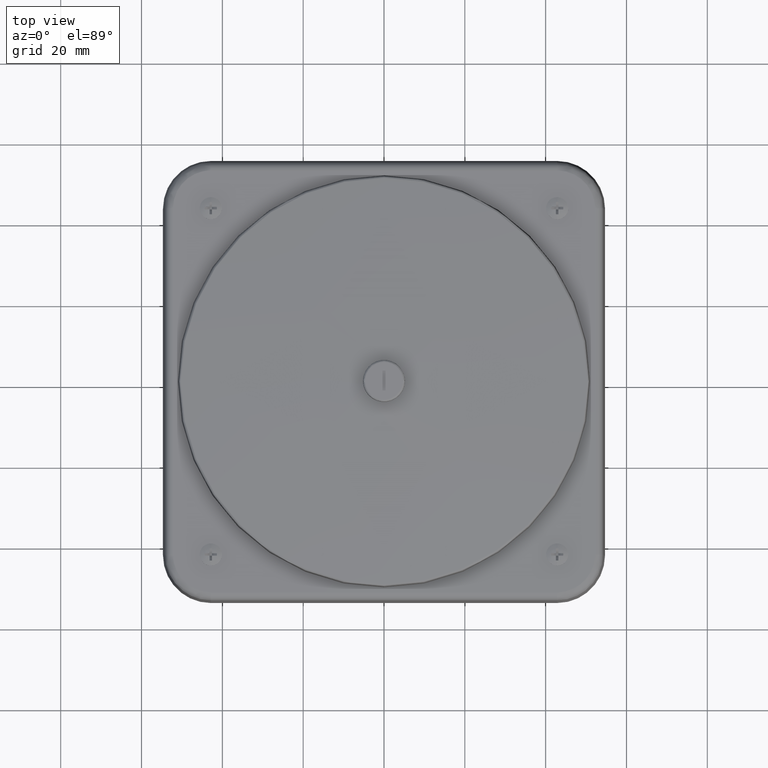
[diagram: clean part render]
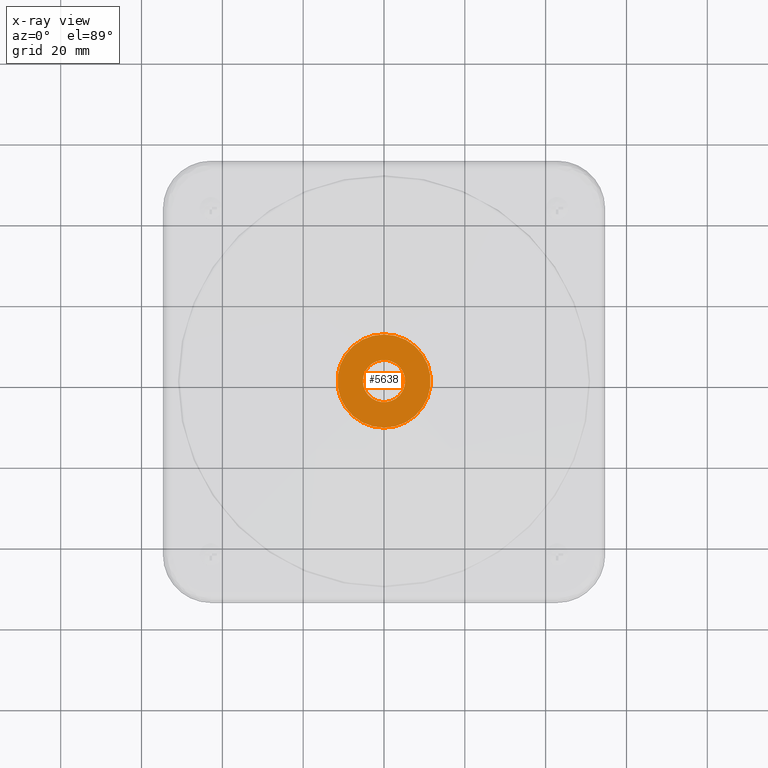
[diagram: x-ray — body ghosted, one internal face saturated and labeled with its STEP entity id]
A machine part, top view, then the same camera in x-ray: the body is ghosted and one INTERNAL B-rep face — a face not visible from any outside direction — is saturated and labeled: STEP entity #5638.
In plain terms, the highlighted planar face has unit normal (0, 0, 1).
Its self-contained STEP definition (entity closure, byte-faithful):
#767 = VERTEX_POINT ( 'NONE', #20316 ) ;
#895 = AXIS2_PLACEMENT_3D ( 'NONE', #19258, #17499, #4511 ) ;
#961 = DIRECTION ( 'NONE',  ( 1.195140789863510099E-25, -1.836909530700119911E-16, 1.000000000000000000 ) ) ;
#2031 = AXIS2_PLACEMENT_3D ( 'NONE', #8934, #961, #4240 ) ;
#2290 = DIRECTION ( 'NONE',  ( 0.000000000000000000, 0.000000000000000000, 1.000000000000000000 ) ) ;
#3074 = FACE_BOUND ( 'NONE', #14197, .T. ) ;
#3133 = ORIENTED_EDGE ( 'NONE', *, *, #17782, .T. ) ;
#3294 = EDGE_CURVE ( 'NONE', #14513, #767, #7529, .T. ) ;
#3783 = ORIENTED_EDGE ( 'NONE', *, *, #21020, .T. ) ;
#4240 = DIRECTION ( 'NONE',  ( 0.000000000000000000, 1.000000000000000000, 0.000000000000000000 ) ) ;
#4248 = CIRCLE ( 'NONE', #19947, 0.4544527542132086317 ) ;
#4408 = CARTESIAN_POINT ( 'NONE',  ( 0.2058933543126763577, 2.825358857238343151E-15, 2.559339538721795204 ) ) ;
#4511 = DIRECTION ( 'NONE',  ( -1.000000000000000000, 0.000000000000000000, 0.000000000000000000 ) ) ;
#4916 = CARTESIAN_POINT ( 'NONE',  ( 2.956759690072473427E-10, -0.4544527542132097420, 2.559339538721059348 ) ) ;
#5638 = ADVANCED_FACE ( 'NONE', ( #14969, #3074 ), #9939, .T. ) ;
#6851 = ORIENTED_EDGE ( 'NONE', *, *, #18920, .T. ) ;
#7529 = CIRCLE ( 'NONE', #895, 0.2058933543126791610 ) ;
#8296 = CIRCLE ( 'NONE', #21255, 0.2058933543126791610 ) ;
#8666 = CIRCLE ( 'NONE', #2031, 0.4544527542132086317 ) ;
#8934 = CARTESIAN_POINT ( 'NONE',  ( -2.731847993666074838E-15, -5.435836013389566810E-16, 2.559339538721059348 ) ) ;
#8956 = DIRECTION ( 'NONE',  ( 1.000000000000000000, 0.000000000000000000, 0.000000000000000000 ) ) ;
#9204 = CARTESIAN_POINT ( 'NONE',  ( -2.956814883576456901E-10, 0.4544527542132086317, 2.559339538721059348 ) ) ;
#9873 = VERTEX_POINT ( 'NONE', #4916 ) ;
#9939 = PLANE ( 'NONE',  #18049 ) ;
#11163 = DIRECTION ( 'NONE',  ( 0.000000000000000000, 1.000000000000000000, 0.000000000000000000 ) ) ;
#12469 = CARTESIAN_POINT ( 'NONE',  ( -2.731847993666074838E-15, -5.435836013389566810E-16, 2.559339538721059348 ) ) ;
#13544 = CARTESIAN_POINT ( 'NONE',  ( -2.731847993664263613E-15, -5.463695987328543200E-16, 2.559339538721059348 ) ) ;
#14197 = EDGE_LOOP ( 'NONE', ( #3133, #16933 ) ) ;
#14266 = CARTESIAN_POINT ( 'NONE',  ( -2.797412345512204431E-15, 2.800144193505869651E-15, 2.559339538721795204 ) ) ;
#14375 = EDGE_LOOP ( 'NONE', ( #3783, #6851 ) ) ;
#14428 = DIRECTION ( 'NONE',  ( 1.195140789863510099E-25, -1.836909530700119911E-16, 1.000000000000000000 ) ) ;
#14513 = VERTEX_POINT ( 'NONE', #4408 ) ;
#14969 = FACE_OUTER_BOUND ( 'NONE', #14375, .T. ) ;
#15784 = DIRECTION ( 'NONE',  ( -1.000000000000000000, 0.000000000000000000, 0.000000000000000000 ) ) ;
#16933 = ORIENTED_EDGE ( 'NONE', *, *, #3294, .T. ) ;
#17499 = DIRECTION ( 'NONE',  ( 0.000000000000000000, 0.000000000000000000, -1.000000000000000000 ) ) ;
#17782 = EDGE_CURVE ( 'NONE', #767, #14513, #8296, .T. ) ;
#18049 = AXIS2_PLACEMENT_3D ( 'NONE', #13544, #2290, #8956 ) ;
#18920 = EDGE_CURVE ( 'NONE', #21228, #9873, #8666, .T. ) ;
#19258 = CARTESIAN_POINT ( 'NONE',  ( -2.797412345512204431E-15, 2.800144193505869651E-15, 2.559339538721795204 ) ) ;
#19306 = DIRECTION ( 'NONE',  ( 0.000000000000000000, 0.000000000000000000, -1.000000000000000000 ) ) ;
#19947 = AXIS2_PLACEMENT_3D ( 'NONE', #12469, #14428, #11163 ) ;
#20316 = CARTESIAN_POINT ( 'NONE',  ( -0.2058933543126819643, 2.800144193505869651E-15, 2.559339538721795204 ) ) ;
#21020 = EDGE_CURVE ( 'NONE', #9873, #21228, #4248, .T. ) ;
#21228 = VERTEX_POINT ( 'NONE', #9204 ) ;
#21255 = AXIS2_PLACEMENT_3D ( 'NONE', #14266, #19306, #15784 ) ;